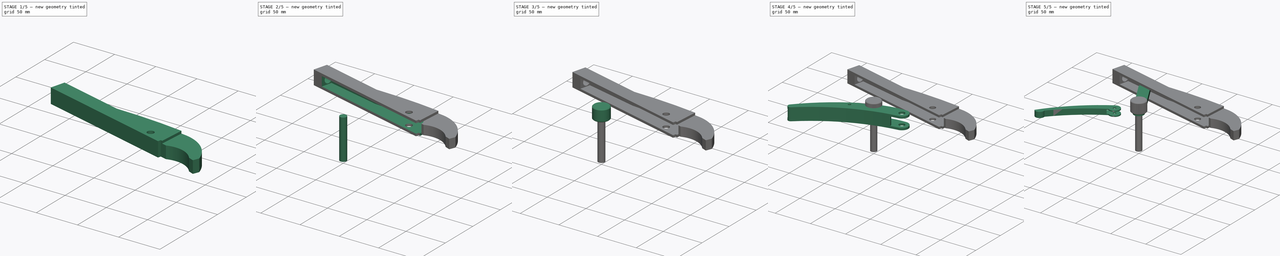
[diagram: build sequence overview — one tinted view per stage of 5, left to right]
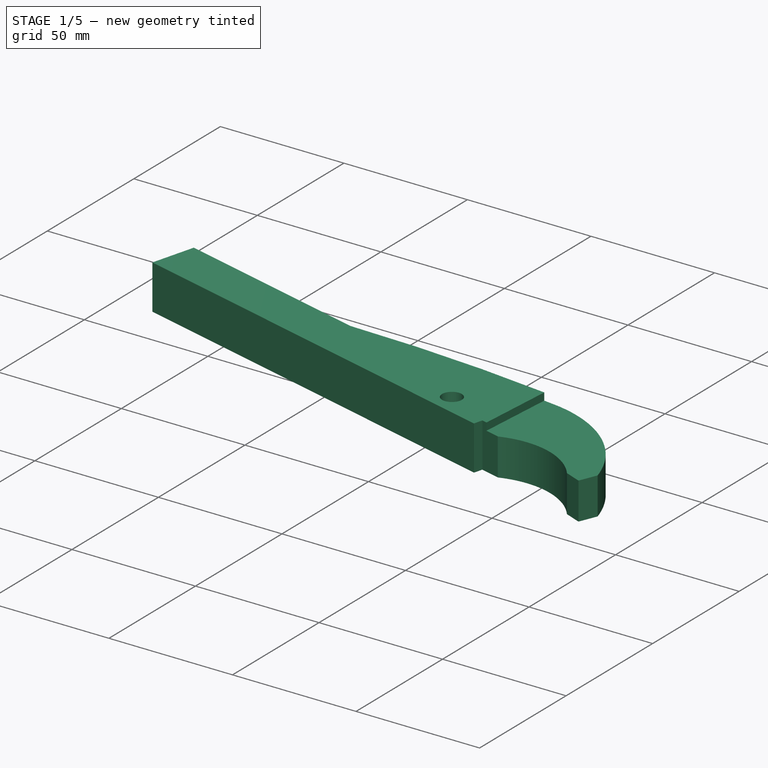
[diagram: stage 1 of 5 — iso view after this stage's code; geometry added in this stage tinted green]
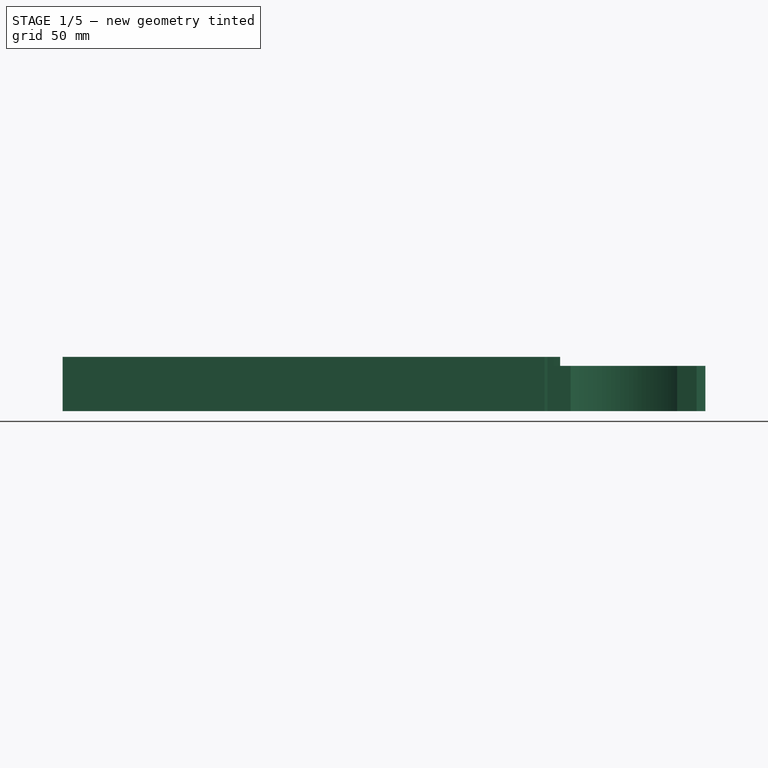
[diagram: stage 1 of 5 — front view after this stage's code; geometry added in this stage tinted green]
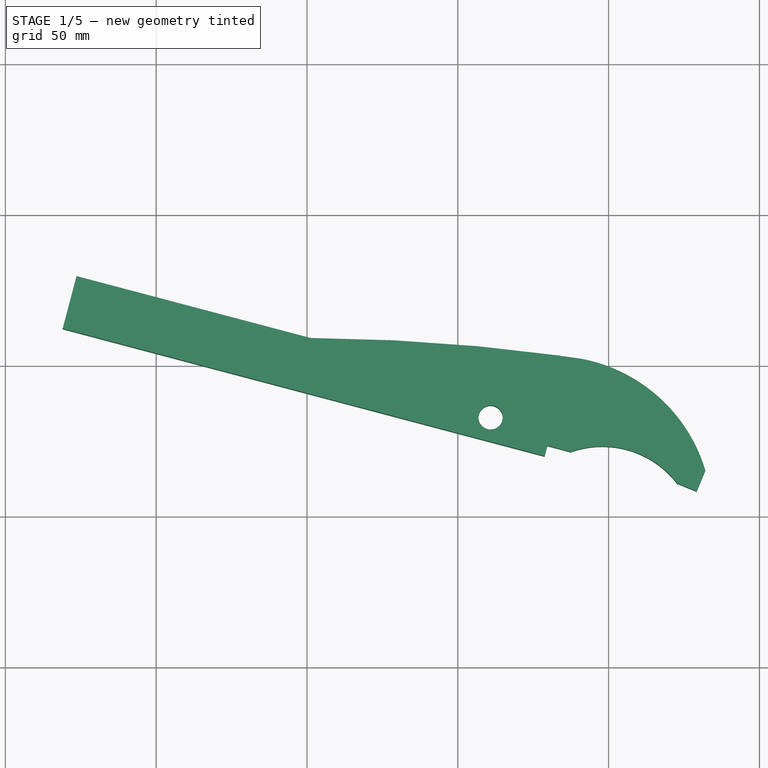
[diagram: stage 1 of 5 — top view after this stage's code; geometry added in this stage tinted green]
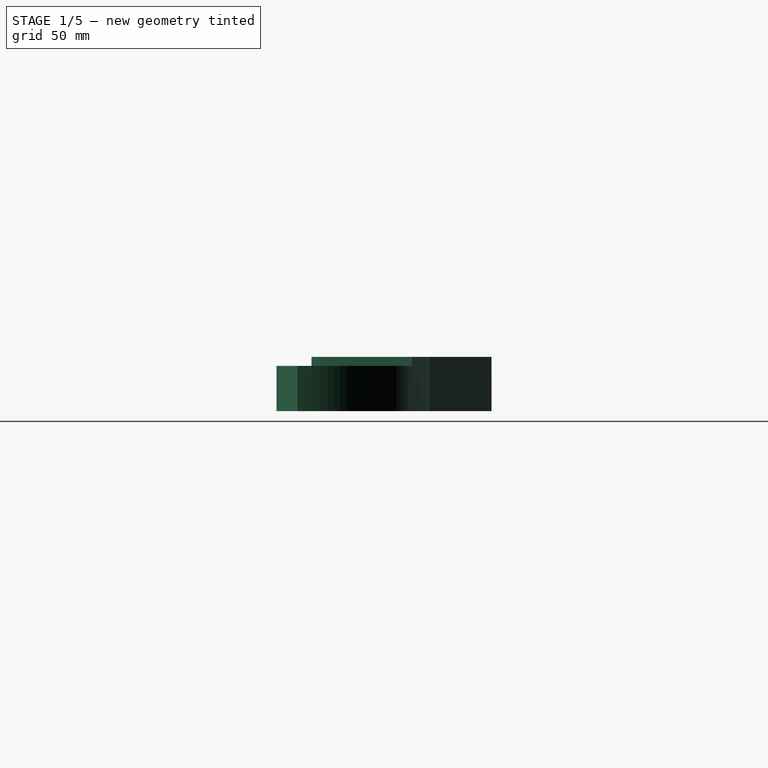
[diagram: stage 1 of 5 — right view after this stage's code; geometry added in this stage tinted green]
FCSTD DOCUMENT  (FreeCAD 0.19R20655 (Git))
Label: pinza_a_scatto_assembly_4
License: All rights reserved
LicenseURL: http://en.wikipedia.org/wiki/All_rights_reserved
objects: Sketcher::SketchObject×14, PartDesign::CoordinateSystem×13, PartDesign::Pad×6, PartDesign::Pocket×6, App::Link×6, PartDesign::Body×6, PartDesign::SubShapeBinder×3, PartDesign::Point×3, App::DocumentObjectGroup×2, App::FeaturePython×1, PartDesign::Plane×1, Part::FeaturePython×1, PartDesign::FeatureBase×1, PartDesign::Groove×1, PartDesign::PolarPattern×1, PartDesign::Mirrored×1, App::Part×1
note: 70 computed .brp shape members not serialized (recipe doc carries the construction recipe); baked Part::Feature solids carry a one-line shape summary decoded from their .brp

FEATURE [PartDesign::CoordinateSystem] LCS_Origin
  AttacherType = Attacher::AttachEngine3D
  MapMode = 2
  Support = -> [X_Axis]
FEATURE [App::DocumentObjectGroup] Constraints
FEATURE [App::FeaturePython] Variables  # WARN: FeaturePython — macro-defined, semantics opaque (R4)
  stretta = 100
FEATURE [Sketcher::SketchObject] Sketch_master_XZ
  MapMode = 5
  Support = -> [XY_Plane]
  expr: Constraints[12] = Variables.stretta
  sketch-geometry (4):
    g0: LineSegment StartX=0 StartY=0 StartZ=0 EndX=-0.547735 EndY=-37.9961 EndZ=0
    g1: LineSegment StartX=-39.7398 StartY=-29.9972 StartZ=0 EndX=-94 EndY=0 EndZ=0
    g2: LineSegment StartX=-0.547735 StartY=-37.9961 StartZ=0 EndX=-137.72 EndY=-10 EndZ=0
    g3: LineSegment StartX=-137.72 StartY=-10 StartZ=0 EndX=-137.72 EndY=-110 EndZ=0
  constraints (13):
    c: Coincident(g0,g-1)
    c: Distance(g0) = 38
    c: PointOnObject(g1,g-1)
    c: Distance(g1) = 62
    c: Coincident(g2,g0)
    c: PointOnObject(g1,g2)
    c: Distance(g1,g0) = 40
    c: DistanceX(g1) = -94
    c: Distance(g1,g2) = 100
    c: Coincident(g3,g2)
    c: Vertical(g3)
    c: DistanceY(g3,g-1) = 110
    c: Distance(g3) = 100
FEATURE [PartDesign::CoordinateSystem] LCS_free_1
  AttacherType = Attacher::AttachEngine3D
  MapMode = 49
  Placement = pos=(-0.547735,-37.9961,0) rot=(0,0,-1;1.58521rad)
  Support = -> [Sketch_master_XZ]
FEATURE [PartDesign::CoordinateSystem] LCS_free_2
  AttacherType = Attacher::AttachEngine3D
  MapMode = 52
  Placement = pos=(-39.7398,-29.9972,0) rot=(0,0,1;1.36947rad)
  Support = -> [Sketch_master_XZ]
FEATURE [PartDesign::CoordinateSystem] LCS_fix
  AttacherType = Attacher::AttachEngine3D
  MapMode = 1
  Placement = pos=(-94,0,0) rot=(0,0,1;0rad)
  Support = -> [Sketch_master_XZ]
FEATURE [Sketcher::SketchObject] Sketch008
  MapMode = 5
  Support = -> [XY_Plane004]
  sketch-geometry (7):
    g0: LineSegment StartX=84.054 StartY=25.0066 StartZ=0 EndX=76.6129 EndY=40.9426 EndZ=0
    g1: ArcOfCircle CenterX=60.1999 CenterY=33.2788 CenterZ=0 NormalX=0 NormalY=0 NormalZ=1 AngleXU=0 Radius=18.1141 StartAngle=0.436851 EndAngle=1.39859
    g2: LineSegment StartX=63.3038 StartY=51.125 StartZ=0 EndX=2.08825 EndY=55.7684 EndZ=0
    g3: LineSegment StartX=2.08825 StartY=55.7684 StartZ=0 EndX=-65.344 EndY=72.0326 EndZ=0
    g4: LineSegment StartX=-65.344 StartY=72.0326 StartZ=0 EndX=-69.7298 EndY=53.7583 EndZ=0
    g5: LineSegment StartX=-69.7298 StartY=53.7583 StartZ=0 EndX=84.054 EndY=17.9406 EndZ=0
    g6: LineSegment StartX=84.054 StartY=17.9406 StartZ=0 EndX=84.054 EndY=25.0066 EndZ=0
  constraints (8):
    c: Tangent(g0,g1) = -1.5708
    c: Coincident(g1,g2)
    c: Coincident(g2,g3)
    c: Coincident(g3,g4)
    c: Coincident(g4,g5)
    c: Coincident(g5,g6)
    c: Coincident(g6,g0)
    c: Vertical(g6)
FEATURE [Sketcher::SketchObject] Sketch012
  MapMode = 5
  Support = -> [XY_Plane007]
  sketch-geometry (4):
    g0: LineSegment StartX=-0.5 StartY=10.5 StartZ=0 EndX=-0.05 EndY=9.5 EndZ=0
    g1: LineSegment StartX=-0.05 StartY=9.5 StartZ=0 EndX=0.05 EndY=9.5 EndZ=0
    g2: LineSegment StartX=0.05 StartY=9.5 StartZ=0 EndX=0.5 EndY=10.5 EndZ=0
    g3: LineSegment StartX=0.5 StartY=10.5 StartZ=0 EndX=-0.5 EndY=10.5 EndZ=0
  constraints (10):
    c: Coincident(g0,g1)
    c: Coincident(g1,g2)
    c: Coincident(g2,g3)
    c: Coincident(g3,g0)
    c: Symmetric(g0,g2,g-2)
    c: Symmetric(g1,g0,g-2)
    c: DistanceY(g-1,g1) = 9.5
    c: DistanceX(g3,g3) = 1
    c: DistanceY(g1,g2) = 1
    c: Distance(g1) = 0.1
FEATURE [Sketcher::SketchObject] Sketch007
  AttachmentOffset = pos=(0,0,6) rot=(0,0,1;0rad)
  MapMode = 5
  Placement = pos=(0,0,6) rot=(0,0,1;0rad)
  Support = -> [XY_Plane004]
  sketch-geometry (5):
    g0: LineSegment StartX=81.6339 StartY=20.9875 StartZ=0 EndX=84.0187 EndY=54.6693 EndZ=0
    g1: LineSegment StartX=84.0187 StartY=54.6693 StartZ=0 EndX=91.8155 EndY=53.6255 EndZ=0
    g2: ArcOfCircle CenterX=85.2659 CenterY=4.70524 CenterZ=0 NormalX=0 NormalY=0 NormalZ=1 AngleXU=0 Radius=49.3567 StartAngle=0.206087 EndAngle=1.4377
    g3: LineSegment StartX=133.578 StartY=14.8052 StartZ=0 EndX=129.18 EndY=5.66002 EndZ=0
    g4: LineSegment StartX=129.18 StartY=5.66002 StartZ=0 EndX=81.6339 EndY=20.9875 EndZ=0
  constraints (5):
    c: Coincident(g0,g1)
    c: Tangent(g1,g2) = 1.5708
    c: Coincident(g2,g3)
    c: Coincident(g3,g4)
    c: Coincident(g4,g0)
FEATURE [Sketcher::SketchObject] Sketch013
  MapMode = 5
  Placement = pos=(0,0,0) rot=(1,0,0;1.5708rad)
  Support = -> [XZ_Plane007]
  sketch-geometry (7):
    g0: LineSegment StartX=-10.3 StartY=-0.45 StartZ=0 EndX=-8.8 EndY=-0.45 EndZ=0
    g1: LineSegment StartX=-8.8 StartY=-0.45 StartZ=0 EndX=-10.3 EndY=1.05 EndZ=0
    g2: LineSegment StartX=-10.3 StartY=1.05 StartZ=0 EndX=-10.3 EndY=-0.45 EndZ=0
    g3: LineSegment [constr] StartX=-10.3 StartY=-0.45 StartZ=0 EndX=-10.3 EndY=15.3 EndZ=0
    g4: LineSegment StartX=-10.3 StartY=15.3 StartZ=0 EndX=-10.3 EndY=13.8 EndZ=0
    g5: LineSegment StartX=-10.3 StartY=13.8 StartZ=0 EndX=-8.8 EndY=15.3 EndZ=0
    g6: LineSegment StartX=-8.8 StartY=15.3 StartZ=0 EndX=-10.3 EndY=15.3 EndZ=0
  constraints (20):
    c: Coincident(g0,g1)
    c: Coincident(g1,g2)
    c: Coincident(g2,g0)
    c: Perpendicular(g2,g0)
    c: Parallel(g0,g-1)
    c: Equal(g0,g2)
    c: DistanceX(g0) = -10.3
    c: DistanceY(g0) = -0.45
    c: Coincident(g3,g0)
    c: Vertical(g3)
    c: DistanceY(g2,g2) = 1.5
    c: Coincident(g3,g4)
    c: Vertical(g4)
    c: Coincident(g4,g5)
    c: Coincident(g5,g6)
    c: Coincident(g6,g4)
    c: Horizontal(g6)
    c: Equal(g6,g4)
    c: DistanceX(g6,g6) = 1.5
    c: Distance(g3) = 15.75
FEATURE [Sketcher::SketchObject] Sketch011
  MapMode = 5
  Support = -> [XY_Plane007]
  sketch-geometry (1):
    g0: Circle CenterX=0 CenterY=0 CenterZ=0 NormalX=0 NormalY=0 NormalZ=1 AngleXU=0 Radius=10
  constraints (2):
    c: Coincident(g0,g-1)
    c: Radius(g0) = 10
FEATURE [PartDesign::SubShapeBinder] Binder002
  BindMode = 0
  ClaimChildren = false
  Context = -> Body004 [Binder002.]
  Fuse = false
  MakeFace = true
  PartialLoad = false
  Relative = true
  Support = -> [Body002[Pad002.Face17]]
  _Version = 2
FEATURE [Sketcher::SketchObject] Sketch005
  ExternalGeometry = -> [Binder002]
  MapMode = 5
  Support = -> [XY_Plane004]
  sketch-geometry (12):
    g0: LineSegment StartX=129.192 StartY=8.29089 StartZ=0 EndX=132.069 EndY=15.2632 EndZ=0
    g1: LineSegment StartX=-76.4002 StartY=79.57 StartZ=0 EndX=-81.0038 EndY=62.1687 EndZ=0
    g2: LineSegment StartX=-81.0038 StartY=62.1687 StartZ=0 EndX=78.7729 EndY=19.8989 EndZ=0
    g3: ArcOfCircle CenterX=81.0345 CenterY=-0.176411 CenterZ=0 NormalX=0 NormalY=0 NormalZ=1 AngleXU=0 Radius=53.319 StartAngle=0.293779 EndAngle=1.37856
    g4: LineSegment StartX=129.192 StartY=8.29089 StartZ=0 EndX=122.692 EndY=10.9049 EndZ=0
    g5: LineSegment StartX=78.7729 StartY=19.8989 StartZ=0 EndX=79.7012 EndY=23.4161 EndZ=0
    g6: LineSegment StartX=79.7012 StartY=23.4161 StartZ=0 EndX=87.416 EndY=21.3159 EndZ=0
    g7: ArcOfCircle CenterX=97.9281 CenterY=-8.03417 CenterZ=0 NormalX=0 NormalY=0 NormalZ=1 AngleXU=0 Radius=31.1758 StartAngle=0.6529 EndAngle=1.91472
    g8: LineSegment StartX=-76.4002 StartY=79.57 StartZ=0 EndX=1.21394 EndY=59.0368 EndZ=0
    g9: ArcOfCircle CenterX=-2.92778 CenterY=-587.68 CenterZ=0 NormalX=0 NormalY=0 NormalZ=1 AngleXU=0 Radius=646.73 StartAngle=1.4247 EndAngle=1.56439
    g10: Circle CenterX=60.8645 CenterY=32.7279 CenterZ=0 NormalX=0 NormalY=0 NormalZ=1 AngleXU=0 Radius=4
    g11: LineSegment [constr] StartX=87.416 StartY=21.3159 StartZ=0 EndX=81.5427 EndY=12.1782 EndZ=0
  constraints (22):
    c: Coincident(g1,g2)
    c: Coincident(g3,g0)
    c: Coincident(g0,g4)
    c: Coincident(g5,g6)
    c: Coincident(g7,g6)
    c: Coincident(g7,g4)
    c: DistanceX(g0) = 132.069
    c: DistanceY(g0) = 15.2632
    c: Distance(g1) = 18
    c: Perpendicular(g1,g2)
    c: Coincident(g2,g5)
    c: Coincident(g8,g1)
    c: Coincident(g9,g8)
    c: Coincident(g9,g3)
    c: Perpendicular(g1,g8)
    c: DistanceX(g2) = 78.7729
    c: DistanceX(g8) = 1.21394
    c: DistanceY(g8) = 59.0368
    c: Coincident(g11,g6)
    c: Coincident(g11,g-3)
    c: DistanceX(g6) = 87.416
    c: DistanceY(g6) = 21.3159
FEATURE [PartDesign::SubShapeBinder] Binder
  BindMode = 0
  ClaimChildren = false
  Context = -> Body001 [Binder.]
  Fuse = false
  MakeFace = true
  PartialLoad = false
  Relative = true
  Support = -> [Body[Pocket.Face8]]
  _Version = 2
FEATURE [Sketcher::SketchObject] Sketch004
  MapMode = 5
  Support = -> [XY_Plane002]
  sketch-geometry (16):
    g0: Circle CenterX=60.6264 CenterY=31.9148 CenterZ=0 NormalX=0 NormalY=0 NormalZ=1 AngleXU=0 Radius=4
    g1: LineSegment [constr] StartX=40 StartY=0 StartZ=0 EndX=60.6264 EndY=31.9148 EndZ=0
    g2: Circle CenterX=44.4687 CenterY=10.6594 CenterZ=0 NormalX=0 NormalY=0 NormalZ=1 AngleXU=0 Radius=1.5
    g3: LineSegment StartX=116.148 StartY=-14.7672 StartZ=0 EndX=110.433 EndY=-19.3215 EndZ=0
    g4: ArcOfCircle CenterX=40 CenterY=0 CenterZ=0 NormalX=0 NormalY=0 NormalZ=1 AngleXU=0 Radius=8 StartAngle=2.46455 EndAngle=4.45899
    g5: LineSegment StartX=50.7819 StartY=23.2474 StartZ=0 EndX=52.7748 EndY=33.4487 EndZ=0
    g6: ArcOfCircle CenterX=60.6264 CenterY=31.9148 CenterZ=0 NormalX=0 NormalY=0 NormalZ=1 AngleXU=0 Radius=8 StartAngle=0.388483 EndAngle=2.94866
    g7: LineSegment StartX=68.0302 StartY=34.9451 StartZ=0 EndX=76.7936 EndY=15.4999 EndZ=0
    g8: LineSegment StartX=76.7936 StartY=15.4999 StartZ=0 EndX=81.5427 EndY=12.1782 EndZ=0
    g9: ArcOfCircle CenterX=44.8932 CenterY=24.3978 CenterZ=0 NormalX=0 NormalY=0 NormalZ=1 AngleXU=0 Radius=6 StartAngle=5.40857 EndAngle=6.09025
    g10: LineSegment StartX=37.9944 StartY=-7.74453 StartZ=0 EndX=60.1114 EndY=-9.24796 EndZ=0
    g11: ArcOfCircle CenterX=98.05 CenterY=49.546 CenterZ=0 NormalX=0 NormalY=0 NormalZ=1 AngleXU=0 Radius=69.9719 StartAngle=4.13934 EndAngle=4.89029
    g12: LineSegment StartX=116.148 StartY=-14.7672 StartZ=0 EndX=110.27 EndY=-10.8789 EndZ=0
    g13: ArcOfCircle CenterX=112.96 CenterY=21.897 CenterZ=0 NormalX=0 NormalY=0 NormalZ=1 AngleXU=0 Radius=32.8861 StartAngle=3.4416 EndAngle=4.6305
    g14: Circle CenterX=40 CenterY=0 CenterZ=0 NormalX=0 NormalY=0 NormalZ=1 AngleXU=0 Radius=4
    g15: LineSegment StartX=33.7646 StartY=5.01195 StartZ=0 EndX=48.7409 EndY=19.794 EndZ=0
  constraints (2):
    c: Coincident(g13,g12)
    c: Coincident(g13,g8)
FEATURE [PartDesign::Pad] Pad002
  Length = 12
  Length2 = 100
  Midplane = true
  Profile = -> Sketch004
  Type = 0
FEATURE [PartDesign::Pad] Pad003
  Length = 18
  Length2 = 100
  Midplane = true
  Profile = -> Sketch005
  Type = 0
FEATURE [PartDesign::Pocket] Pocket002
  BaseFeature = -> Pad003
  Length = 4
  Length2 = 100
  Profile = -> Sketch007
  Reversed = true
  Type = 1
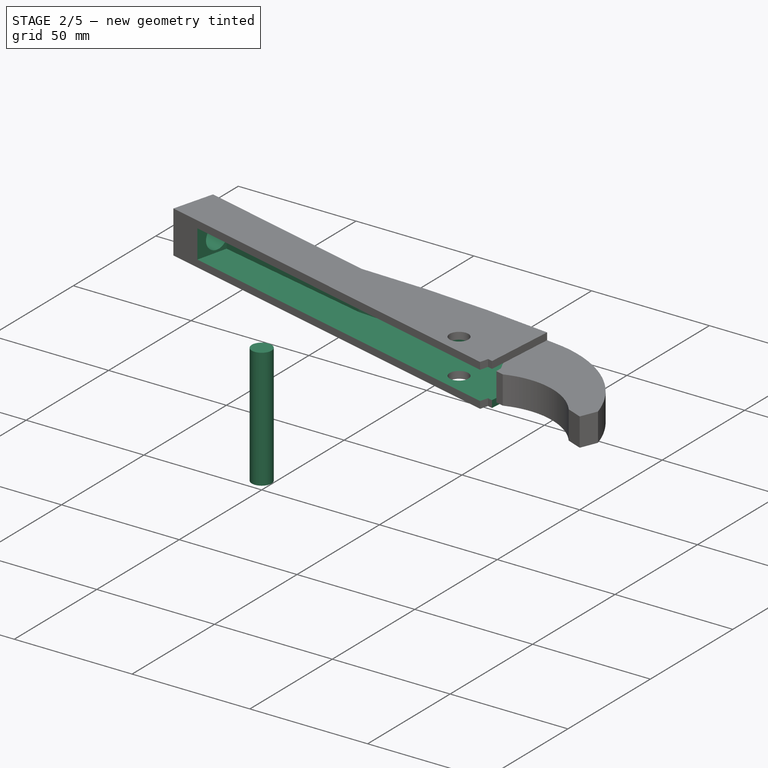
[diagram: stage 2 of 5 — iso view after this stage's code; geometry added in this stage tinted green]
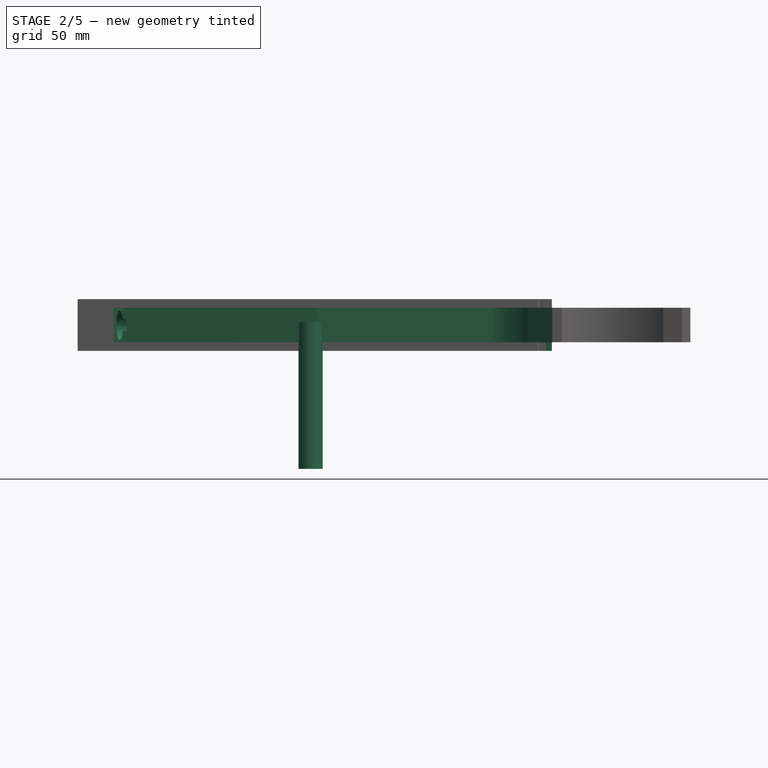
[diagram: stage 2 of 5 — front view after this stage's code; geometry added in this stage tinted green]
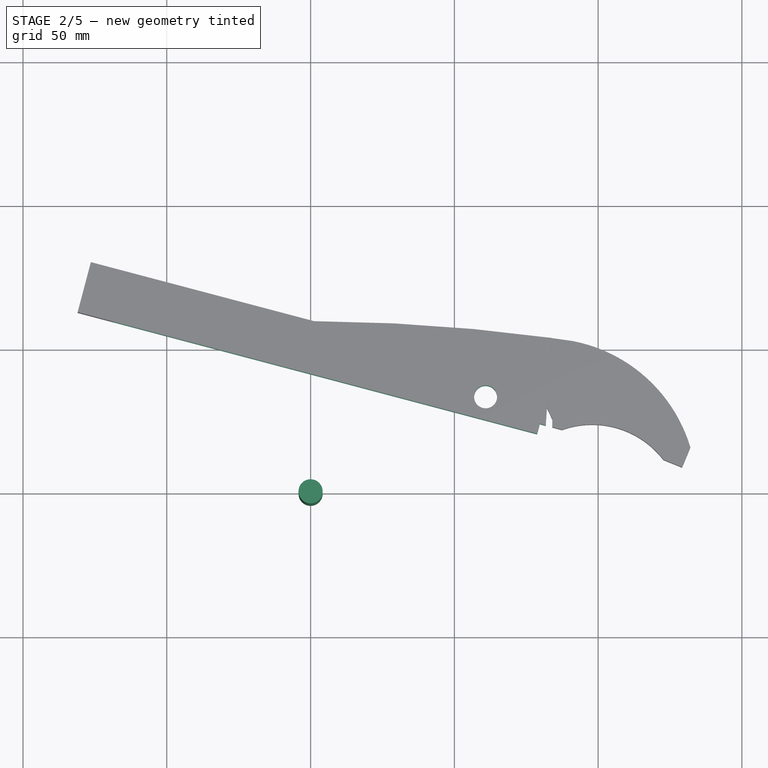
[diagram: stage 2 of 5 — top view after this stage's code; geometry added in this stage tinted green]
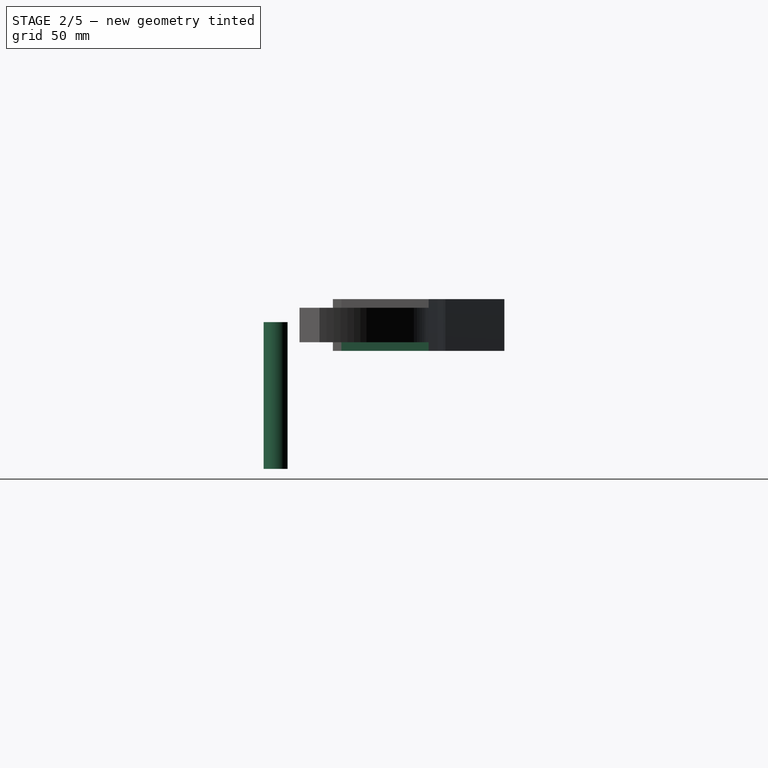
[diagram: stage 2 of 5 — right view after this stage's code; geometry added in this stage tinted green]
FEATURE [PartDesign::Plane] DatumPlane
  AttachmentOffset = pos=(0,0,0) rot=(0,1,0;1.5708rad)
  Length = 173.227
  MapMode = 7
  Placement = pos=(-76.4002,79.57,0) rot=(-0.478114,0.62105,0.62105;4.03357rad)
  ResizeMode = 0
  Support = -> [Sketch005]
  Width = 67.6401
FEATURE [Sketcher::SketchObject] Sketch009
  ExternalGeometry = -> [Sketch005]
  MapMode = 5
  Placement = pos=(-76.4002,79.57,0) rot=(-0.478114,0.62105,0.62105;4.03357rad)
  Support = -> [DatumPlane]
  sketch-geometry (1):
    g0: Circle CenterX=9 CenterY=7.1e-15 CenterZ=0 NormalX=0 NormalY=0 NormalZ=1 AngleXU=0 Radius=5
  constraints (1):
    c: Radius(g0) = 5
FEATURE [Part::FeaturePython] ScrewTap  label="M10x50.0-ScrewTap"  # Fasteners workbench fastener (typed FeaturePython)
  diameter = 10
  invert = false
  length = 50
  matchOuter = false
  offset = 0
  thread = false
FEATURE [PartDesign::Mirrored] Mirrored
  BaseFeature = -> Pocket002
  MirrorPlane = -> XY_Plane004
  Originals = -> [Pocket002]
FEATURE [PartDesign::Pocket] Pocket003
  BaseFeature = -> Mirrored
  Length = 12
  Length2 = 100
  Midplane = true
  Profile = -> Sketch008
  Type = 0
FEATURE [PartDesign::Pocket] Pocket004
  BaseFeature = -> Pocket003
  Length = 14
  Length2 = 100
  Profile = -> Sketch009
  Type = 0
FEATURE [PartDesign::CoordinateSystem] LCS_1
  AttacherType = Attacher::AttachEngine3D
  AttachmentOffset = pos=(0,0,0) rot=(0,0,1;-0.256563rad)
  MapMode = 11
  Placement = pos=(60.8645,32.7279,0) rot=(0,0,-1;4.96895rad)
  Support = -> [Sketch005]
FEATURE [App::Link] Body_block  label="Body_block001"
  AssemblyType = Asm4EE
  AttachedBy = #LCS_1
  AttachedTo = Parent Assembly#LCS_Origin
  AttachmentOffset = pos=(0,0,0) rot=(0,0,-1;4.71239rad)
  LinkPlacement = pos=(-50.5673,-47.1015,0) rot=(0,0,-1;6.02662rad)
  LinkedObject = -> Body004
  Placement = pos=(-50.5673,-47.1015,0) rot=(0,0,-1;6.02662rad)
  expr: Placement = LCS_Origin.Placement * AttachmentOffset * LCS_1.Placement ^ -1
FEATURE [PartDesign::Point] Point_1
  AttacherType = Attacher::AttachEnginePoint
  MapMode = 36
  Placement = pos=(60.6264,31.9148,0) rot=(1,0,0;1.5708rad)
  Support = -> [Sketch004]
FEATURE [PartDesign::CoordinateSystem] LCS_2
  AttacherType = Attacher::AttachEngine3D
  MapMode = 11
  Placement = pos=(40,0,0) rot=(0,0,1;2.56783rad)
  Support = -> [Sketch004,Point_1]
FEATURE [PartDesign::Body] Body002  label="Body_pinza_free"
  Group = -> [Sketch004,Pad002,LCS_2,Point_1]
  Origin = -> Origin002
  Tip = -> Pad002
FEATURE [App::Link] Body_pinza_free  label="Body_pinza_free001"
  AssemblyType = Asm4EE
  AttachedBy = #LCS_2
  AttachedTo = Parent Assembly#LCS_free_1
  AttachmentOffset = pos=(0,0,0) rot=(0,0,1;4.71239rad)
  LinkPlacement = pos=(-34.4517,-59.2215,0) rot=(0,0,1;0.559352rad)
  LinkedObject = -> Body002
  Placement = pos=(-34.4517,-59.2215,0) rot=(0,0,1;0.559352rad)
  expr: Placement = LCS_free_1.Placement * AttachmentOffset * LCS_2.Placement ^ -1
FEATURE [App::Link] Body_leva  label="Body_leva001"
  AssemblyType = Asm4EE
  AttachedBy = #LCS_3
  AttachedTo = Parent Assembly#LCS_free_2
  LinkPlacement = pos=(-39.7398,-29.9972,0) rot=(0,0,-1;0.201329rad)
  LinkedObject = -> Body
  Placement = pos=(-39.7398,-29.9972,0) rot=(0,0,-1;0.201329rad)
  expr: Placement = LCS_free_2.Placement * AttachmentOffset * LCS_3.Placement ^ -1
FEATURE [PartDesign::Point] Point_2
  AttacherType = Attacher::AttachEnginePoint
  MapMode = 36
  Placement = pos=(40,0,0) rot=(1,0,0;1.5708rad)
  Support = -> [Sketch]
FEATURE [PartDesign::CoordinateSystem] LCS_3
  AttacherType = Attacher::AttachEngine3D
  MapMode = 11
  Placement = pos=(0,0,0) rot=(0,0,1;1.5708rad)
  Support = -> [Sketch,Point_2]
FEATURE [PartDesign::CoordinateSystem] LCS_4
  AttacherType = Attacher::AttachEngine3D
  MapMode = 11
  Placement = pos=(-23.4606,-15.7083,0) rot=(0,0,1;1.5708rad)
  Support = -> [Sketch]
FEATURE [PartDesign::Body] Body  label="Body_leva"
  Group = -> [Sketch,Pad,Sketch001,Pocket,LCS_3,Point_2,LCS_4]
  Origin = -> Origin008
  Placement = pos=(-50,-65,0) rot=(0,0,1;0rad)
  Tip = -> Pocket
FEATURE [PartDesign::CoordinateSystem] LCS_5
  AttacherType = Attacher::AttachEngine3D
  MapMode = 11
  Placement = pos=(-23.4606,-15.7083,0) rot=(0,0,1;1.5708rad)
  Support = -> [Sketch002]
FEATURE [PartDesign::Body] Body001  label="Body_leva_sgancio"
  Group = -> [Sketch002,Binder,Pad001,Sketch003,Pocket001,LCS_5]
  Origin = -> Origin001
  Tip = -> Pocket001
FEATURE [App::Link] Body_leva_sgancio  label="Body_leva_sgancio001"
  AssemblyType = Asm4EE
  AttachedBy = #LCS_5
  AttachedTo = Body_leva#LCS_4
  LinkPlacement = pos=(-39.7398,-29.9972,0) rot=(0,0,-1;0.201329rad)
  LinkedObject = -> Body001
  Placement = pos=(-39.7398,-29.9972,0) rot=(0,0,-1;0.201329rad)
  expr: Placement = Body_leva.Placement * LCS_4.Placement * AttachmentOffset * LCS_5.Placement ^ -1
FEATURE [PartDesign::CoordinateSystem] LCS_free_staffa
  AttacherType = Attacher::AttachEngine3D
  MapMode = 52
  Placement = pos=(-39.7398,-29.9972,0) rot=(0,0,1;1.06578rad)
  Support = -> [Sketch_master_XZ]
FEATURE [PartDesign::Point] Point_3
  AttacherType = Attacher::AttachEnginePoint
  MapMode = 36
  Placement = pos=(-29.8277,54.3536,3) rot=(0.940124,0.241004,0.241004;1.6325rad)
  Support = -> [Pad004]
FEATURE [PartDesign::CoordinateSystem] LCS_6
  AttacherType = Attacher::AttachEngine3D
  MapMode = 11
  Placement = pos=(0,0,3) rot=(0,0,1;3.64349rad)
  Support = -> [Pad004,Point_3]
FEATURE [PartDesign::Body] Body005  label="Body_staffa"
  Group = -> [Sketch006,Binder003,Pad004,Point_3,LCS_6]
  Origin = -> Origin005
  Placement = pos=(-12,-121,0) rot=(0,0,1;0rad)
  Tip = -> Pad004
FEATURE [App::Link] Body_staffa  label="Body_staffa001"
  AssemblyType = Asm4EE
  AttachedBy = #LCS_6
  AttachedTo = Parent Assembly#LCS_free_staffa
  AttachmentOffset = pos=(0,0,3) rot=(0,0,-1;3.14159rad)
  LinkPlacement = pos=(-39.7398,-29.9972,-4e-16) rot=(0,0,1;0.563876rad)
  LinkedObject = -> Body005
  Placement = pos=(-39.7398,-29.9972,-4e-16) rot=(0,0,1;0.563876rad)
  expr: Placement = LCS_free_staffa.Placement * AttachmentOffset * LCS_6.Placement ^ -1
FEATURE [PartDesign::CoordinateSystem] LCS_8
  AttacherType = Attacher::AttachEngine3D
  MapMode = 11
  Placement = pos=(0,0,-50) rot=(0,0,1;1.5708rad)
  Support = -> [PolarPattern]
FEATURE [PartDesign::Body] Body007  label="Body_vite_regolazione"
  BaseFeature = -> ScrewTap
  Group = -> [BaseFeature,Sketch011,Pad005,Sketch012,Sketch013,Groove,Pocket005,PolarPattern,LCS_8]
  Origin = -> Origin007
  Tip = -> PolarPattern
FEATURE [App::Link] Body_vite_regolazione  label="Body_vite_regolazione001"
  AssemblyType = Asm4EE
  AttachedBy = #LCS_8
  AttachedTo = Body_block#LCS_9
  AttachmentOffset = pos=(0,0,-43) rot=(0,0,1;0rad)
  LinkPlacement = pos=(-151.677,1.49138,7.1e-15) rot=(-0.576555,0.577748,0.577748;4.1876rad)
  LinkedObject = -> Body007
  Placement = pos=(-151.677,1.49138,7.1e-15) rot=(-0.576555,0.577748,0.577748;4.1876rad)
  expr: Placement = Body_block.Placement * LCS_9.Placement * AttachmentOffset * LCS_8.Placement ^ -1
FEATURE [App::Part] Model
  Configuration = 0
  Group = -> [LCS_Origin,Constraints,Variables,Sketch_master_XZ,LCS_free_1,LCS_free_2,LCS_fix,Body_block,Body_pinza_free,Body_leva,Body_leva_sgancio,LCS_free_staffa,Body_staffa,Body_vite_regolazione]
  Origin = -> Origin
  Type = Assembly4 Model
FEATURE [PartDesign::CoordinateSystem] LCS_9
  AttacherType = Attacher::AttachEngine3D
  MapMode = 11
  Placement = pos=(-78.702,70.8693,7.1e-15) rot=(-0.127896,-0.983507,-0.127896;1.58743rad)
  Support = -> [Pocket004]
FEATURE [PartDesign::Body] Body004  label="Body_block"
  Group = -> [Sketch005,Binder002,Pad003,Sketch007,Pocket002,Mirrored,Sketch008,Pocket003,Sketch009,Pocket004,DatumPlane,LCS_1,LCS_9]
  Origin = -> Origin004
  Tip = -> Pocket004
FEATURE [App::DocumentObjectGroup] Parts
  Group = -> [ScrewTap,Body001,Body005,Body002,Body007,Body,Body004]
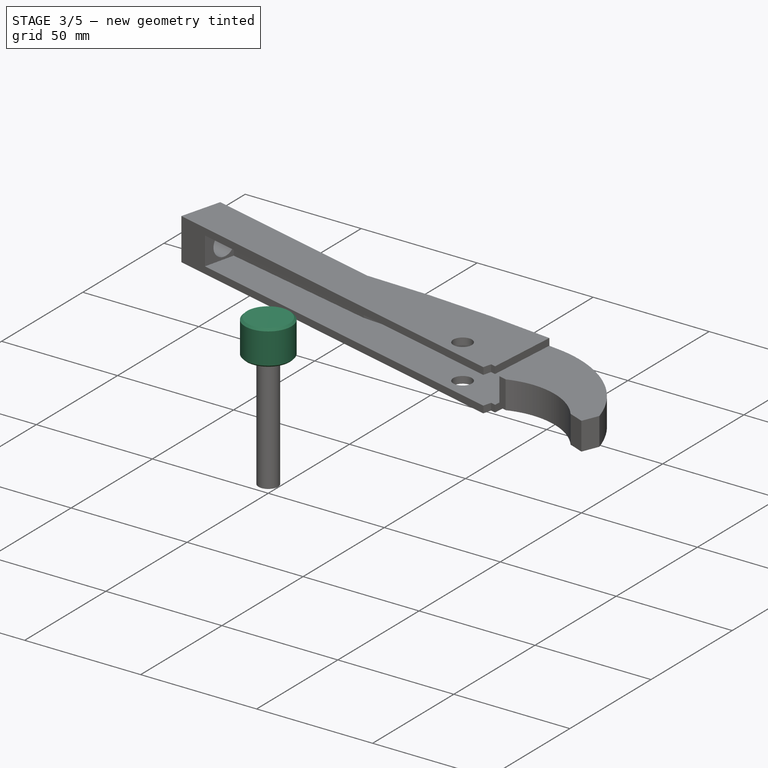
[diagram: stage 3 of 5 — iso view after this stage's code; geometry added in this stage tinted green]
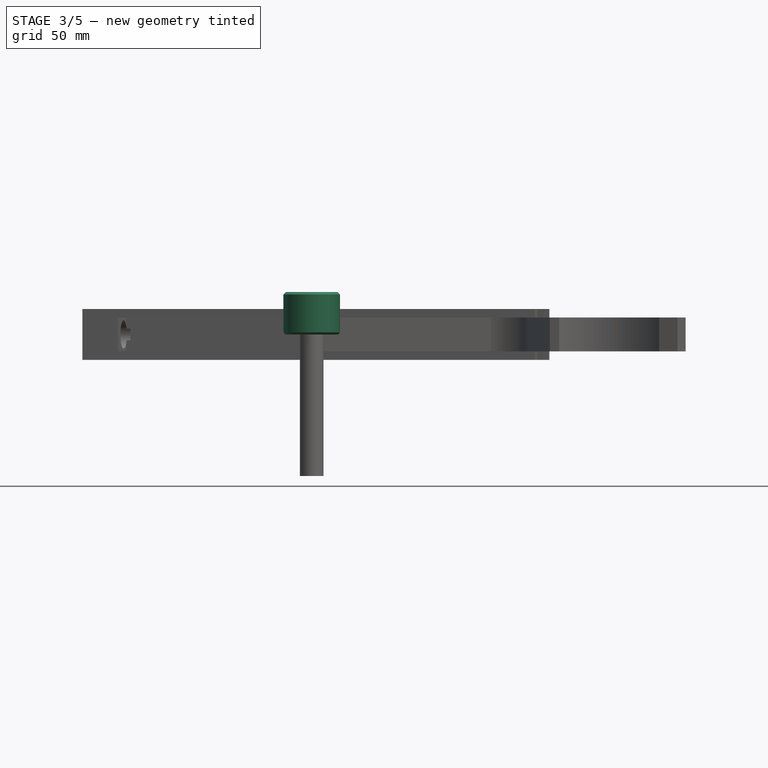
[diagram: stage 3 of 5 — front view after this stage's code; geometry added in this stage tinted green]
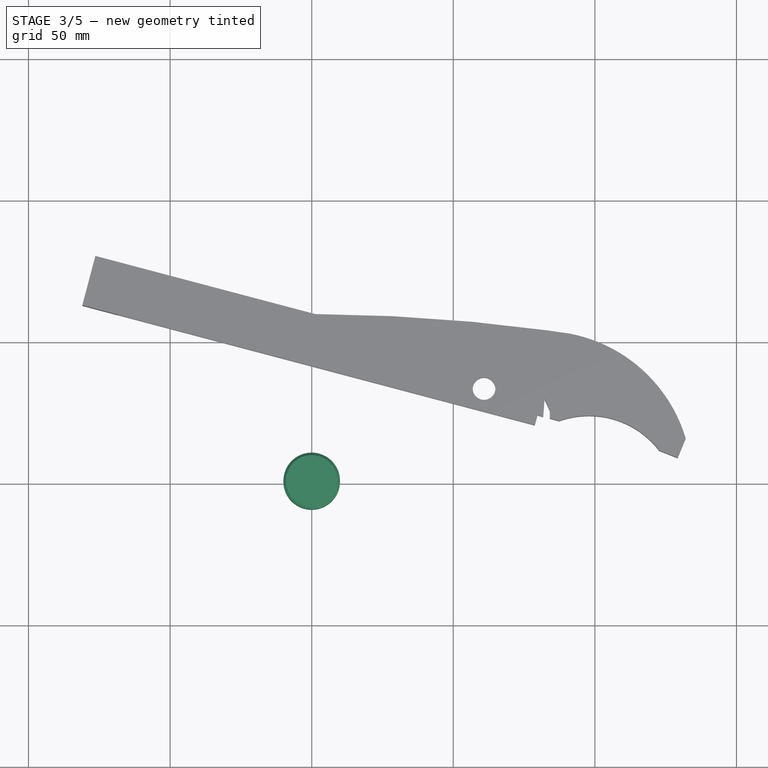
[diagram: stage 3 of 5 — top view after this stage's code; geometry added in this stage tinted green]
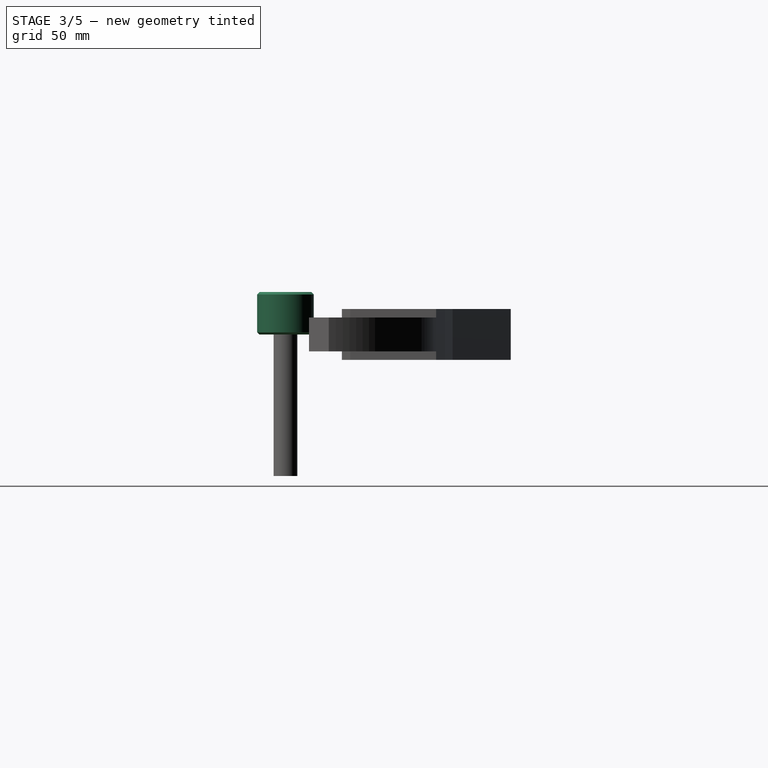
[diagram: stage 3 of 5 — right view after this stage's code; geometry added in this stage tinted green]
FEATURE [PartDesign::FeatureBase] BaseFeature
  BaseFeature = -> ScrewTap
FEATURE [PartDesign::Pad] Pad005
  BaseFeature = -> BaseFeature
  Length = 15
  Length2 = 100
  Profile = -> Sketch011
  Type = 0
FEATURE [PartDesign::Groove] Groove
  Angle = 360
  Axis = (0,-2e-16,1)
  Base = (0,0,0)
  BaseFeature = -> Pad005
  Profile = -> Sketch013
  ReferenceAxis = -> Sketch013 [V_Axis]
  Reversed = true
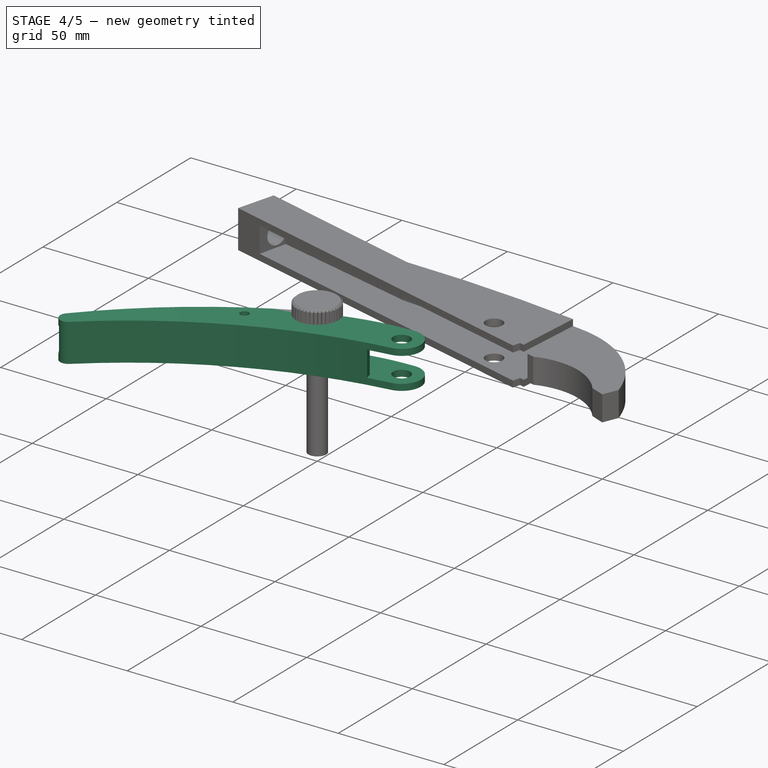
[diagram: stage 4 of 5 — iso view after this stage's code; geometry added in this stage tinted green]
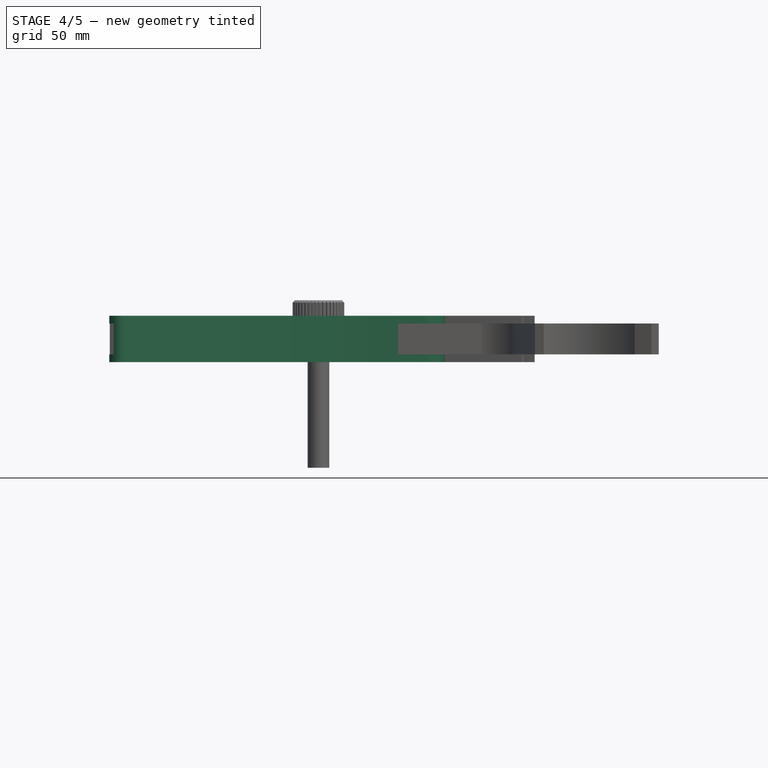
[diagram: stage 4 of 5 — front view after this stage's code; geometry added in this stage tinted green]
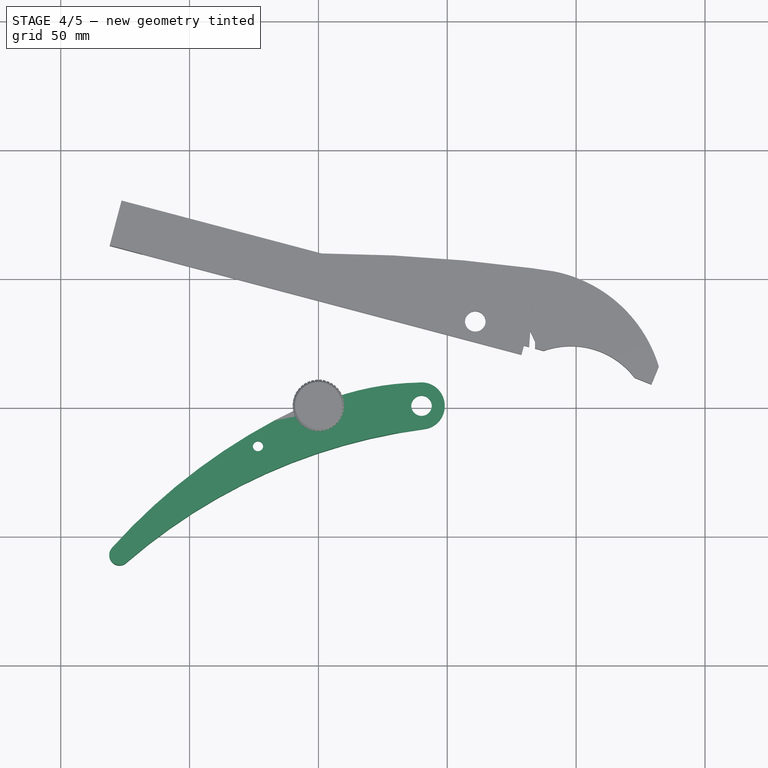
[diagram: stage 4 of 5 — top view after this stage's code; geometry added in this stage tinted green]
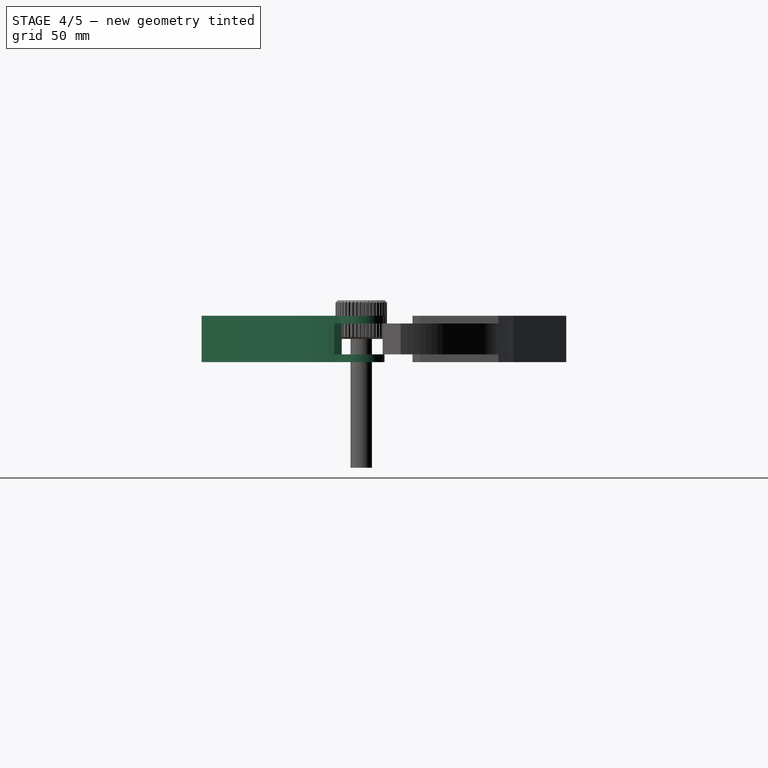
[diagram: stage 4 of 5 — right view after this stage's code; geometry added in this stage tinted green]
FEATURE [PartDesign::Pocket] Pocket005
  BaseFeature = -> Groove
  Length = 5
  Length2 = 100
  Profile = -> Sketch012
  Reversed = true
  Type = 1
FEATURE [Sketcher::SketchObject] Sketch
  MapMode = 5
  Support = -> [XY_Plane008]
  sketch-geometry (10):
    g0: ArcOfCircle CenterX=69.6412 CenterY=-227.074 CenterZ=0 NormalX=0 NormalY=0 NormalZ=1 AngleXU=0 Radius=220 StartAngle=1.7006 EndAngle=2.28427
    g1: ArcOfCircle CenterX=40 CenterY=0 CenterZ=0 NormalX=0 NormalY=0 NormalZ=1 AngleXU=0 Radius=9 StartAngle=4.84219 EndAngle=7.98378
    g2: Circle CenterX=40 CenterY=0 CenterZ=0 NormalX=0 NormalY=0 NormalZ=1 AngleXU=0 Radius=4
    g3: Circle CenterX=0 CenterY=0 CenterZ=0 NormalX=0 NormalY=0 NormalZ=1 AngleXU=0 Radius=4
    g4: Circle CenterX=-23.4606 CenterY=-15.7083 CenterZ=0 NormalX=0 NormalY=0 NormalZ=1 AngleXU=0 Radius=2
    g5: ArcOfCircle CenterX=-77.1869 CenterY=-57.9224 CenterZ=0 NormalX=0 NormalY=0 NormalZ=1 AngleXU=0 Radius=4 StartAngle=2.36265 EndAngle=5.50424
    g6: ArcOfCircle CenterX=0 CenterY=0 CenterZ=0 NormalX=0 NormalY=0 NormalZ=1 AngleXU=0 Radius=7 StartAngle=0.466872 EndAngle=3.24461
    g7: ArcOfCircle CenterX=91.1178 CenterY=-208.759 CenterZ=0 NormalX=0 NormalY=0 NormalZ=1 AngleXU=0 Radius=230 StartAngle=2.01135 EndAngle=2.41004
    g8: ArcOfCircle CenterX=40.8104 CenterY=-97.0573 CenterZ=0 NormalX=0 NormalY=0 NormalZ=1 AngleXU=0 Radius=106 StartAngle=1.58943 EndAngle=1.9029
    g9: LineSegment [constr] StartX=-80.0335 StartY=-55.1123 StartZ=0 EndX=-74.3402 EndY=-60.7325 EndZ=0
  constraints (24):
    c: Coincident(g1,g0)
    c: PointOnObject(g1,g-1)
    c: DistanceX(g1) = 40
    c: Coincident(g2,g1)
    c: Radius(g2) = 4
    c: Radius(g1) = 9
    c: Symmetric(g0,g1,g1)
    c: Coincident(g3,g-1)
    c: Radius(g3) = 4
    c: Coincident(g5,g0)
    c: Coincident(g6,g3)
    c: Coincident(g7,g5)
    c: Coincident(g7,g6)
    c: Coincident(g8,g6)
    c: Coincident(g8,g1)
    c: Radius(g6) = 7
    c: Radius(g4) = 2
    c: Radius(g0) = 220
    c: Radius(g7) = 230
    c: Radius(g8) = 106
    c: Radius(g5) = 4
    c: Coincident(g9,g5)
    c: Coincident(g9,g0)
    c: PointOnObject(g5,g9)
FEATURE [PartDesign::Pad] Pad
  Length = 18
  Length2 = 100
  Midplane = true
  Profile = -> Sketch
  Type = 0
FEATURE [Sketcher::SketchObject] Sketch001
  ExternalGeometry = -> [Sketch]
  MapMode = 5
  Support = -> [XY_Plane008]
  sketch-geometry (6):
    g0: ArcOfCircle CenterX=69.6412 CenterY=-227.074 CenterZ=0 NormalX=0 NormalY=0 NormalZ=1 AngleXU=0 Radius=223 StartAngle=1.74861 EndAngle=2.32723
    g1: ArcOfCircle CenterX=69.6412 CenterY=-227.074 CenterZ=0 NormalX=0 NormalY=0 NormalZ=1 AngleXU=0 Radius=247.987 StartAngle=1.65507 EndAngle=2.31653
    g2: LineSegment StartX=-98.6208 StartY=-44.9053 StartZ=0 EndX=-83.4106 EndY=-64.888 EndZ=0
    g3: LineSegment StartX=30.1969 StartY=-7.58974 StartZ=0 EndX=32.007 EndY=-14.7201 EndZ=0
    g4: LineSegment StartX=32.007 StartY=-14.7201 StartZ=0 EndX=56.0888 EndY=-10.6522 EndZ=0
    g5: LineSegment StartX=56.0888 StartY=-10.6522 StartZ=0 EndX=48.7666 EndY=20.033 EndZ=0
  constraints (10):
    c: Coincident(g0,g-3)
    c: Radius(g-3) = 220  'raggio_esterno'
    c: Radius(g0) = 223  'raggio_interno'
    c: Coincident(g1,g0)
    c: Coincident(g2,g1)
    c: Coincident(g2,g0)
    c: Coincident(g0,g3)
    c: Coincident(g3,g4)
    c: Coincident(g4,g5)
    c: Coincident(g5,g1)
FEATURE [PartDesign::Pocket] Pocket
  BaseFeature = -> Pad
  Length = 12
  Length2 = 100
  Midplane = true
  Profile = -> Sketch001
  Type = 0
FEATURE [PartDesign::PolarPattern] PolarPattern
  Angle = 360
  Axis = -> Sketch012 [N_Axis]
  BaseFeature = -> Pocket005
  Occurrences = 40
  Originals = -> [Pocket005]
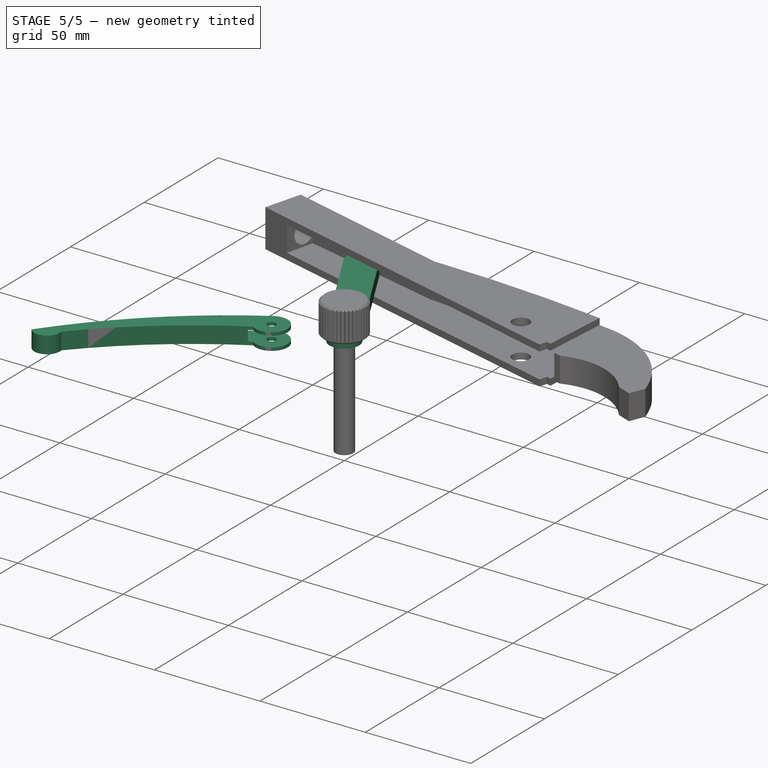
[diagram: stage 5 of 5 — iso view after this stage's code; geometry added in this stage tinted green]
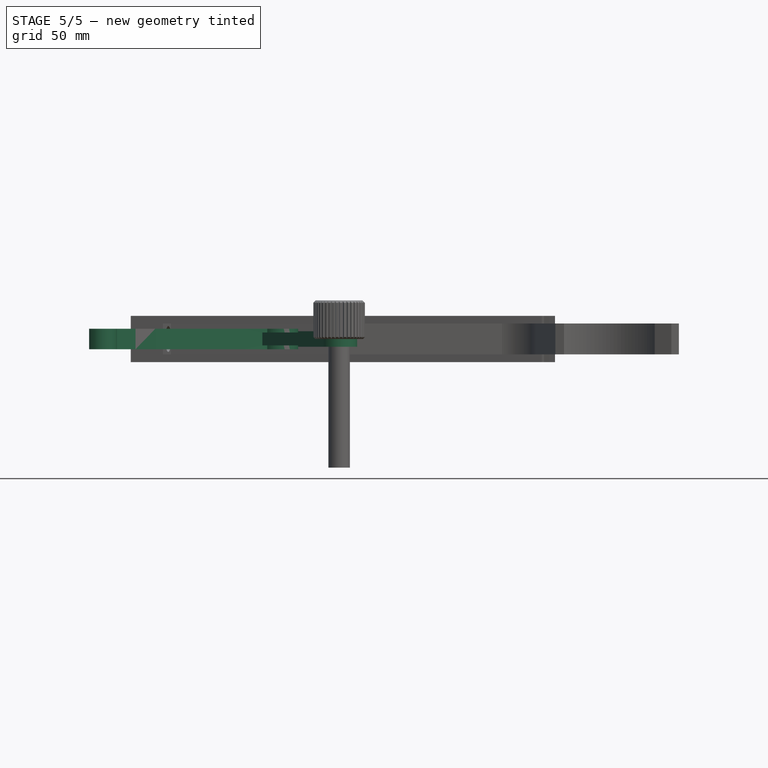
[diagram: stage 5 of 5 — front view after this stage's code; geometry added in this stage tinted green]
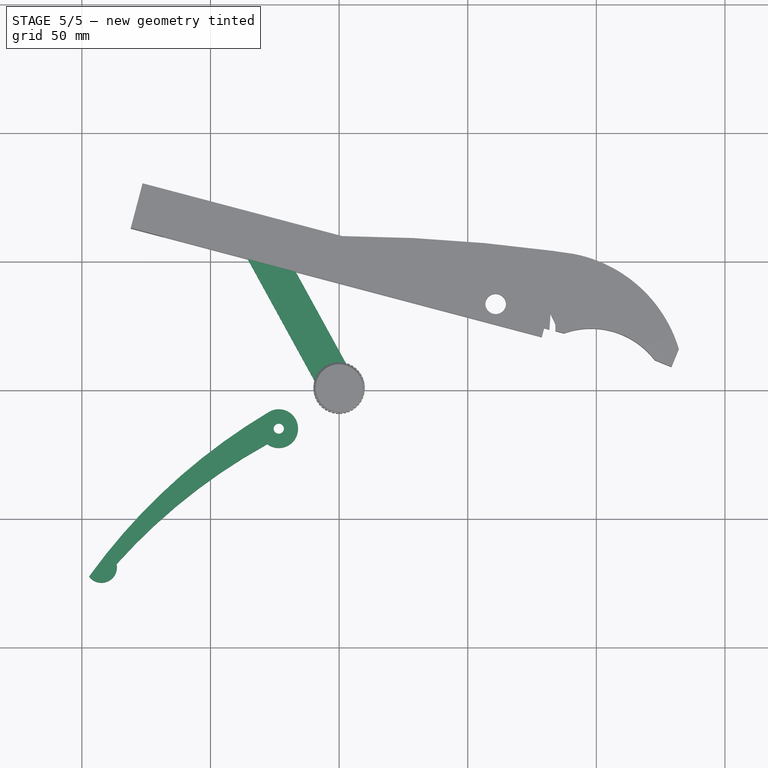
[diagram: stage 5 of 5 — top view after this stage's code; geometry added in this stage tinted green]
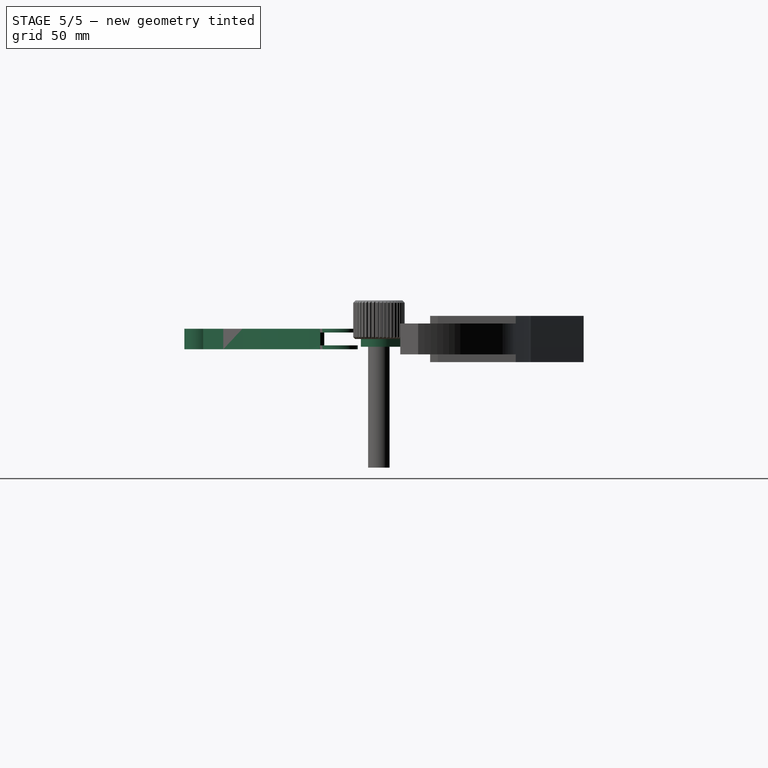
[diagram: stage 5 of 5 — right view after this stage's code; geometry added in this stage tinted green]
FEATURE [Sketcher::SketchObject] Sketch002
  ExternalGeometry = -> [Binder]
  MapMode = 5
  Support = -> [XY_Plane001]
  sketch-geometry (5):
    g0: ArcOfCircle CenterX=79.0589 CenterY=-216.254 CenterZ=0 NormalX=0 NormalY=0 NormalZ=1 AngleXU=0 Radius=222 StartAngle=2.07369 EndAngle=2.41241
    g1: ArcOfCircle CenterX=91.1178 CenterY=-208.759 CenterZ=0 NormalX=0 NormalY=0 NormalZ=1 AngleXU=0 Radius=232 StartAngle=2.10721 EndAngle=2.51758
    g2: ArcOfCircle CenterX=-23.4606 CenterY=-15.7083 CenterZ=0 NormalX=0 NormalY=0 NormalZ=1 AngleXU=0 Radius=7.51 StartAngle=4.0739 EndAngle=8.4135
    g3: ArcOfCircle CenterX=-92.3563 CenterY=-69.6072 CenterZ=0 NormalX=0 NormalY=0 NormalZ=1 AngleXU=0 Radius=6 StartAngle=3.7841 EndAngle=6.49533
    g4: Circle CenterX=-23.4606 CenterY=-15.7083 CenterZ=0 NormalX=0 NormalY=0 NormalZ=1 AngleXU=0 Radius=2
  constraints (11):
    c: Coincident(g2,g0)
    c: Coincident(g2,g1)
    c: Coincident(g3,g1)
    c: Coincident(g3,g0)
    c: Radius(g1) = 232
    c: Radius(g0) = 222
    c: DistanceX(g0) = 79.0589
    c: DistanceY(g0) = -216.254
    c: Coincident(g4,g2)
    c: Radius(g2) = 7.51
    c: Radius(g3) = 6
FEATURE [PartDesign::Pad] Pad001
  Length = 8
  Length2 = 100
  Midplane = true
  Profile = -> Sketch002
  Type = 0
FEATURE [PartDesign::SubShapeBinder] Binder003
  BindMode = 0
  ClaimChildren = false
  Context = -> Body005 [Binder003.]
  Fuse = false
  MakeFace = true
  PartialLoad = false
  Relative = true
  Support = -> [Body[Pocket.Face14]]
  _Version = 2
FEATURE [Sketcher::SketchObject] Sketch006
  ExternalGeometry = -> [Binder003]
  MapMode = 5
  Support = -> [XY_Plane005]
  sketch-geometry (5):
    g0: Circle CenterX=0 CenterY=0 CenterZ=0 NormalX=0 NormalY=0 NormalZ=1 AngleXU=0 Radius=4
    g1: ArcOfCircle CenterX=-29.8277 CenterY=54.3536 CenterZ=0 NormalX=0 NormalY=0 NormalZ=1 AngleXU=0 Radius=7 StartAngle=0.501899 EndAngle=3.64349
    g2: ArcOfCircle CenterX=0 CenterY=0 CenterZ=0 NormalX=0 NormalY=0 NormalZ=1 AngleXU=0 Radius=7 StartAngle=3.64349 EndAngle=6.78508
    g3: LineSegment StartX=-35.9644 StartY=50.9859 StartZ=0 EndX=-6.13669 EndY=-3.36764 EndZ=0
    g4: LineSegment StartX=-23.691 StartY=57.7212 StartZ=0 EndX=6.13669 EndY=3.36764 EndZ=0
  constraints (11):
    c: Coincident(g0,g-1)
    c: Equal(g0,g-3)
    c: Tangent(g1,g4) = 1.5708
    c: Tangent(g1,g3) = -1.5708
    c: Tangent(g3,g2) = -1.5708
    c: Tangent(g4,g2) = 1.5708
    c: Equal(g1,g2)
    c: Coincident(g2,g0)
    c: Radius(g2) = 7
    c: Distance(g0,g1) = 62
    c: DistanceX(g1) = -29.8277
FEATURE [PartDesign::Pad] Pad004
  Length = 6
  Length2 = 100
  Midplane = true
  Profile = -> Sketch006
  Type = 0
FEATURE [Sketcher::SketchObject] Sketch003
  ExternalGeometry = -> [Sketch002]
  MapMode = 5
  Support = -> [XY_Plane001]
  sketch-geometry (6):
    g0: ArcOfCircle CenterX=79.0589 CenterY=-216.254 CenterZ=0 NormalX=0 NormalY=0 NormalZ=1 AngleXU=0 Radius=224 StartAngle=2.08534 EndAngle=2.41757
    g1: ArcOfCircle CenterX=91.1178 CenterY=-208.759 CenterZ=0 NormalX=0 NormalY=0 NormalZ=1 AngleXU=0 Radius=234 StartAngle=2.10628 EndAngle=2.48715
    g2: ArcOfCircle CenterX=-23.4606 CenterY=-15.7083 CenterZ=0 NormalX=0 NormalY=0 NormalZ=1 AngleXU=0 Radius=9.50799 StartAngle=3.76488 EndAngle=8.38589
    g3: ArcOfCircle CenterX=-92.3563 CenterY=-69.6072 CenterZ=0 NormalX=0 NormalY=0 NormalZ=1 AngleXU=0 Radius=4 StartAngle=3.94525 EndAngle=6.73088
    g4: LineSegment StartX=-95.1326 StartY=-72.4868 StartZ=0 EndX=-97.2926 EndY=-70.4044 EndZ=0
    g5: LineSegment StartX=-97.2926 StartY=-70.4044 StartZ=0 EndX=-94.5353 EndY=-66.3195 EndZ=0
  constraints (13):
    c: Coincident(g0,g-3)
    c: Radius(g0) = 224
    c: Coincident(g1,g-6)
    c: Radius(g1) = 234
    c: Coincident(g2,g-4)
    c: Coincident(g2,g1)
    c: Coincident(g0,g2)
    c: Coincident(g3,g-5)
    c: Radius(g3) = 4
    c: Coincident(g0,g3)
    c: Tangent(g3,g4) = 1.5708
    c: Coincident(g4,g5)
    c: Coincident(g5,g1)
FEATURE [PartDesign::Pocket] Pocket001
  BaseFeature = -> Pad001
  Length = 5
  Length2 = 100
  Midplane = true
  Profile = -> Sketch003
  Type = 0
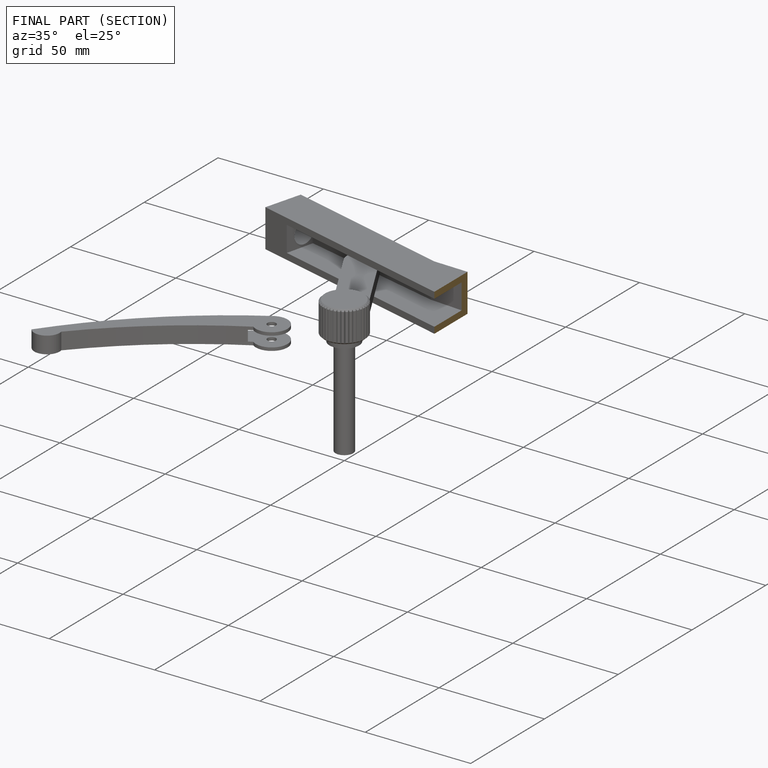
[diagram: finished part — half-section view (interior)]
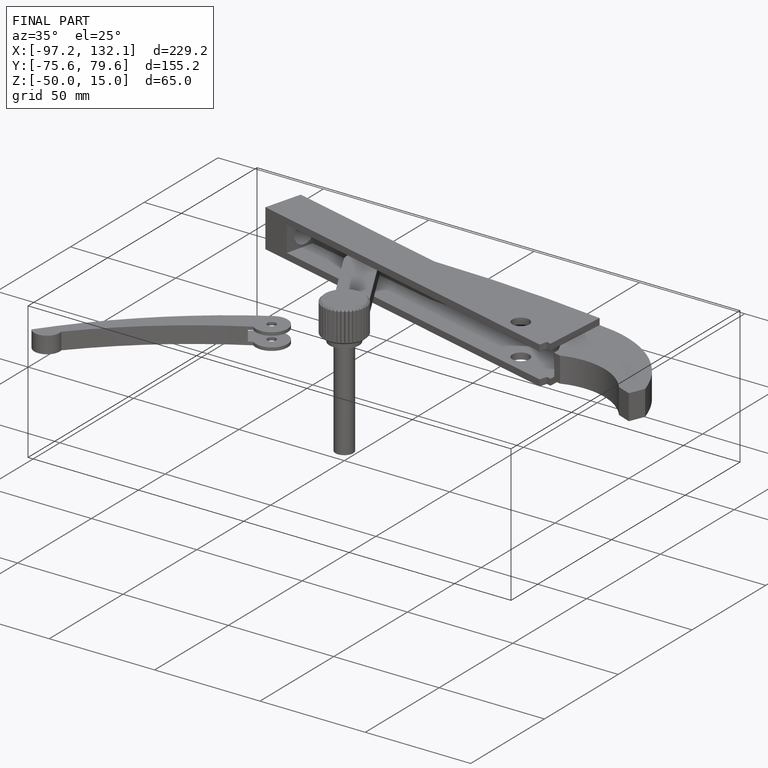
[diagram: finished part — iso view with bounding-box wireframe]
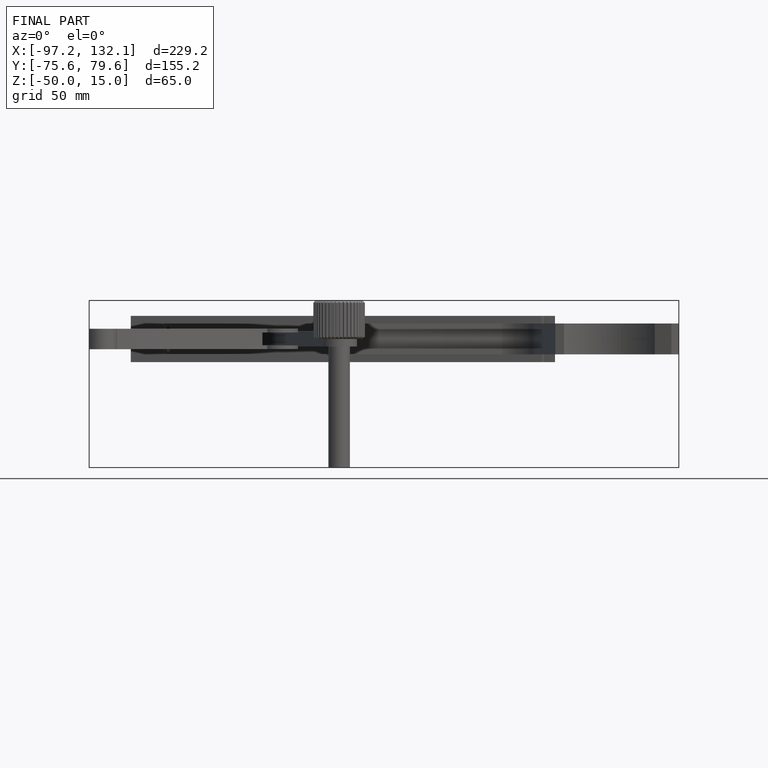
[diagram: finished part — front view with bounding-box wireframe]
